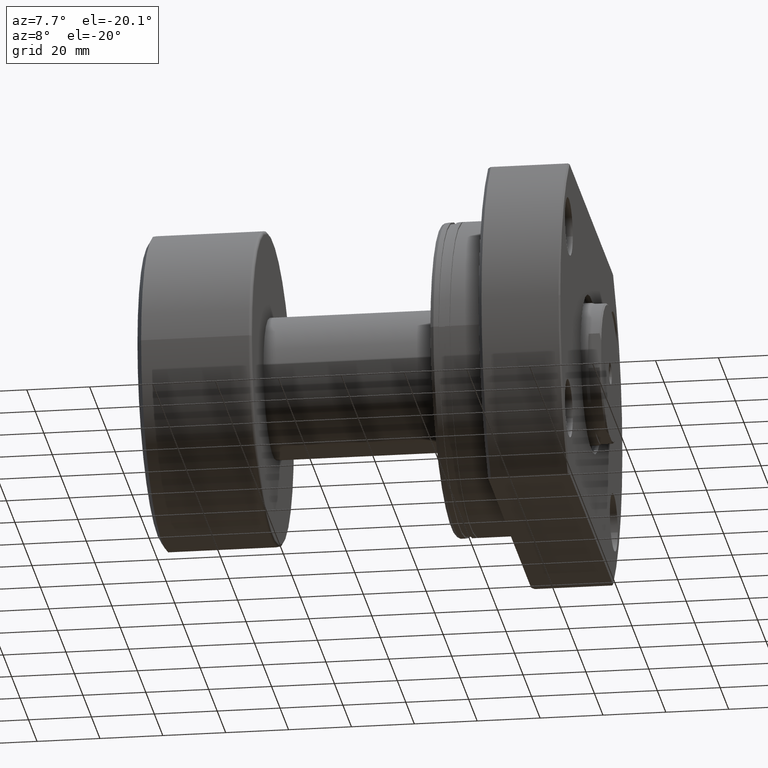
[diagram: clean part render]
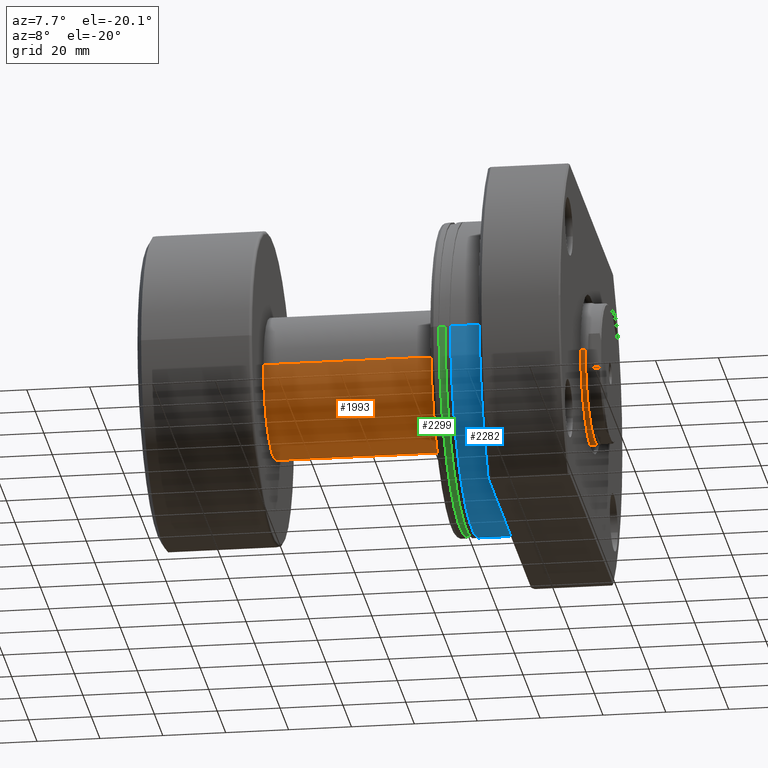
[diagram: same view with three faces highlighted in distinct colors, each labeled with its STEP entity id]
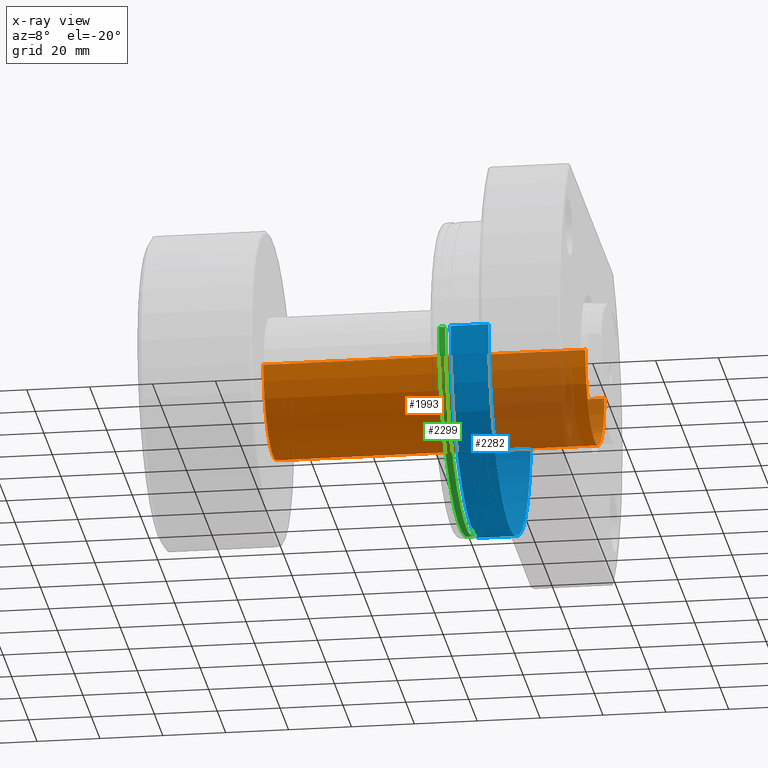
[diagram: x-ray of the same camera — body ghosted, the three highlighted faces saturated]
A machine part, auxiliary view with three faces highlighted in distinct colors.
The next image is the same camera in x-ray (body ghosted, the three faces saturated) — at least one of them is partly hidden behind the body in this view.
Their STEP definitions:

[orange] entity #1993 — the highlighted cylindrical surface (partial cylindrical patch) has radius 22.5 mm, axis along (-1, -0, -0).
#2 = DIRECTION ( 'NONE',  ( 0.000000000000000000, -1.000000000000000000, 0.000000000000000000 ) ) ;
#112 = CYLINDRICAL_SURFACE ( 'NONE', #2166, 22.50000000000009592 ) ;
#146 = ORIENTED_EDGE ( 'NONE', *, *, #1167, .T. ) ;
#185 = DIRECTION ( 'NONE',  ( -1.000000000000000000, -1.069542322069065801E-17, -0.000000000000000000 ) ) ;
#283 = VECTOR ( 'NONE', #185, 1000.000000000000000 ) ;
#361 = EDGE_CURVE ( 'NONE', #1715, #2779, #2980, .T. ) ;
#487 = VERTEX_POINT ( 'NONE', #2752 ) ;
#634 = DIRECTION ( 'NONE',  ( -1.000000000000000000, -1.069542322069065801E-17, -0.000000000000000000 ) ) ;
#974 = CIRCLE ( 'NONE', #2317, 22.50000000000000000 ) ;
#997 = CARTESIAN_POINT ( 'NONE',  ( 36.70000000000000284, -22.50000000000000000, 0.000000000000000000 ) ) ;
#1121 = CARTESIAN_POINT ( 'NONE',  ( 0.000000000000000000, 0.000000000000000000, 0.000000000000000000 ) ) ;
#1142 = CIRCLE ( 'NONE', #3206, 22.50000000000019185 ) ;
#1167 = EDGE_CURVE ( 'NONE', #487, #2038, #2818, .T. ) ;
#1190 = VECTOR ( 'NONE', #2361, 1000.000000000000000 ) ;
#1218 = CARTESIAN_POINT ( 'NONE',  ( 139.0667575123237896, 1.487377827523464785E-15, 0.000000000000000000 ) ) ;
#1322 = ORIENTED_EDGE ( 'NONE', *, *, #361, .F. ) ;
#1423 = CARTESIAN_POINT ( 'NONE',  ( -2.406470224655408490E-16, 22.50000000000009592, 2.755455298081556216E-15 ) ) ;
#1591 = CARTESIAN_POINT ( 'NONE',  ( 36.70000000000000284, 22.50000000000000000, 2.755455298081550694E-15 ) ) ;
#1715 = VERTEX_POINT ( 'NONE', #2775 ) ;
#1716 = DIRECTION ( 'NONE',  ( -1.000000000000000000, -1.069542322069065801E-17, -0.000000000000000000 ) ) ;
#1876 = EDGE_CURVE ( 'NONE', #2779, #2038, #974, .T. ) ;
#1993 = ADVANCED_FACE ( 'NONE', ( #2103 ), #112, .T. ) ;
#2038 = VERTEX_POINT ( 'NONE', #997 ) ;
#2043 = ORIENTED_EDGE ( 'NONE', *, *, #1876, .F. ) ;
#2076 = CARTESIAN_POINT ( 'NONE',  ( 2.406470224655408490E-16, -22.50000000000009592, 0.000000000000000000 ) ) ;
#2091 = EDGE_LOOP ( 'NONE', ( #1322, #2973, #146, #2043 ) ) ;
#2103 = FACE_OUTER_BOUND ( 'NONE', #2091, .T. ) ;
#2166 = AXIS2_PLACEMENT_3D ( 'NONE', #1121, #2605, #3103 ) ;
#2317 = AXIS2_PLACEMENT_3D ( 'NONE', #2792, #634, #3152 ) ;
#2361 = DIRECTION ( 'NONE',  ( -1.000000000000000000, -1.069542322069065801E-17, -0.000000000000000000 ) ) ;
#2605 = DIRECTION ( 'NONE',  ( -1.000000000000000000, -1.069542322069065801E-17, -0.000000000000000000 ) ) ;
#2752 = CARTESIAN_POINT ( 'NONE',  ( 139.0667575123237896, -22.50000000000019185, 0.000000000000000000 ) ) ;
#2775 = CARTESIAN_POINT ( 'NONE',  ( 139.0667575123237896, 22.50000000000018829, 2.755455298081568049E-15 ) ) ;
#2779 = VERTEX_POINT ( 'NONE', #1591 ) ;
#2792 = CARTESIAN_POINT ( 'NONE',  ( 36.70000000000000284, 3.925220321993471577E-16, 0.000000000000000000 ) ) ;
#2818 = LINE ( 'NONE', #2076, #1190 ) ;
#2973 = ORIENTED_EDGE ( 'NONE', *, *, #3121, .T. ) ;
#2980 = LINE ( 'NONE', #1423, #283 ) ;
#3103 = DIRECTION ( 'NONE',  ( 1.069542322069065955E-17, -1.000000000000000000, 0.000000000000000000 ) ) ;
#3121 = EDGE_CURVE ( 'NONE', #1715, #487, #1142, .T. ) ;
#3152 = DIRECTION ( 'NONE',  ( 0.000000000000000000, -1.000000000000000000, 0.000000000000000000 ) ) ;
#3206 = AXIS2_PLACEMENT_3D ( 'NONE', #1218, #1716, #2 ) ;

[blue] entity #2282 — the highlighted cylindrical surface (partial cylindrical patch) has radius 50 mm, axis along (1, 0, 0).
#51 = CARTESIAN_POINT ( 'NONE',  ( 44.50000000000000000, 2.449293598294705724E-15, 0.000000000000000000 ) ) ;
#58 = CARTESIAN_POINT ( 'NONE',  ( 6.499999999999790390, 3.577619862677545540E-16, 0.000000000000000000 ) ) ;
#71 = LINE ( 'NONE', #345, #94 ) ;
#94 = VECTOR ( 'NONE', #1800, 1000.000000000000000 ) ;
#253 = DIRECTION ( 'NONE',  ( 1.000000000000000000, 5.504030557965630938E-17, -0.000000000000000000 ) ) ;
#320 = VERTEX_POINT ( 'NONE', #2351 ) ;
#345 = CARTESIAN_POINT ( 'NONE',  ( 44.50000000000000000, -50.00000000000000000, 6.123233995736766085E-15 ) ) ;
#522 = CYLINDRICAL_SURFACE ( 'NONE', #1041, 50.00000000000000000 ) ;
#549 = DIRECTION ( 'NONE',  ( 0.000000000000000000, 1.000000000000000000, 0.000000000000000000 ) ) ;
#614 = CARTESIAN_POINT ( 'NONE',  ( 6.499999999999793054, -50.00000000000000000, 6.123233995736766085E-15 ) ) ;
#654 = AXIS2_PLACEMENT_3D ( 'NONE', #2979, #253, #3168 ) ;
#791 = DIRECTION ( 'NONE',  ( 1.000000000000000000, 5.504030557965630938E-17, -0.000000000000000000 ) ) ;
#905 = ORIENTED_EDGE ( 'NONE', *, *, #963, .T. ) ;
#963 = EDGE_CURVE ( 'NONE', #320, #1097, #2184, .T. ) ;
#1041 = AXIS2_PLACEMENT_3D ( 'NONE', #51, #791, #549 ) ;
#1097 = VERTEX_POINT ( 'NONE', #2457 ) ;
#1173 = ORIENTED_EDGE ( 'NONE', *, *, #1253, .F. ) ;
#1253 = EDGE_CURVE ( 'NONE', #2148, #1097, #3048, .T. ) ;
#1353 = ORIENTED_EDGE ( 'NONE', *, *, #1526, .T. ) ;
#1357 = VERTEX_POINT ( 'NONE', #614 ) ;
#1388 = AXIS2_PLACEMENT_3D ( 'NONE', #58, #1510, #1560 ) ;
#1510 = DIRECTION ( 'NONE',  ( 1.000000000000000000, 5.504030557965630938E-17, -0.000000000000000000 ) ) ;
#1526 = EDGE_CURVE ( 'NONE', #1357, #320, #2784, .T. ) ;
#1560 = DIRECTION ( 'NONE',  ( -5.204170427930421283E-17, 1.000000000000000000, 0.000000000000000000 ) ) ;
#1706 = CARTESIAN_POINT ( 'NONE',  ( 44.50000000000000000, 50.00000000000000000, 0.000000000000000000 ) ) ;
#1776 = EDGE_LOOP ( 'NONE', ( #2865, #1353, #905, #1173 ) ) ;
#1800 = DIRECTION ( 'NONE',  ( 1.000000000000000000, 5.504030557965630938E-17, -0.000000000000000000 ) ) ;
#1934 = CARTESIAN_POINT ( 'NONE',  ( 18.50000000000000355, -50.00000000000000000, 6.123233995736766085E-15 ) ) ;
#2148 = VERTEX_POINT ( 'NONE', #1934 ) ;
#2184 = LINE ( 'NONE', #1706, #2259 ) ;
#2259 = VECTOR ( 'NONE', #2697, 1000.000000000000000 ) ;
#2282 = ADVANCED_FACE ( 'NONE', ( #2518 ), #522, .T. ) ;
#2351 = CARTESIAN_POINT ( 'NONE',  ( 6.499999999999787725, 50.00000000000000000, 0.000000000000000000 ) ) ;
#2457 = CARTESIAN_POINT ( 'NONE',  ( 18.49999999999999645, 50.00000000000000000, 0.000000000000000000 ) ) ;
#2518 = FACE_OUTER_BOUND ( 'NONE', #1776, .T. ) ;
#2683 = EDGE_CURVE ( 'NONE', #1357, #2148, #71, .T. ) ;
#2697 = DIRECTION ( 'NONE',  ( 1.000000000000000000, 5.504030557965630938E-17, -0.000000000000000000 ) ) ;
#2784 = CIRCLE ( 'NONE', #1388, 50.00000000000000000 ) ;
#2865 = ORIENTED_EDGE ( 'NONE', *, *, #2683, .F. ) ;
#2979 = CARTESIAN_POINT ( 'NONE',  ( 18.50000000000000000, 1.018245653223641557E-15, 0.000000000000000000 ) ) ;
#3048 = CIRCLE ( 'NONE', #654, 50.00000000000000000 ) ;
#3168 = DIRECTION ( 'NONE',  ( -6.938893903907228378E-17, 1.000000000000000000, 0.000000000000000000 ) ) ;

[green] entity #2299 — the highlighted cylindrical surface (partial cylindrical patch) has radius 49.5 mm, axis along (1, 0, 0).
#19 = CARTESIAN_POINT ( 'NONE',  ( 2.699999999999795453, -49.50000000000000000, 6.062001655779398511E-15 ) ) ;
#52 = ORIENTED_EDGE ( 'NONE', *, *, #1956, .T. ) ;
#77 = DIRECTION ( 'NONE',  ( 0.000000000000000000, 1.000000000000000000, 0.000000000000000000 ) ) ;
#119 = DIRECTION ( 'NONE',  ( 1.000000000000000000, 5.504030557965630938E-17, -0.000000000000000000 ) ) ;
#149 = DIRECTION ( 'NONE',  ( -5.256737805990325406E-17, 1.000000000000000000, 0.000000000000000000 ) ) ;
#181 = EDGE_LOOP ( 'NONE', ( #2957, #2275, #52, #1987 ) ) ;
#192 = DIRECTION ( 'NONE',  ( 1.000000000000000000, 5.504030557965630938E-17, -0.000000000000000000 ) ) ;
#281 = CARTESIAN_POINT ( 'NONE',  ( 2.699999999999792788, 1.486088250650606153E-16, 0.000000000000000000 ) ) ;
#365 = CARTESIAN_POINT ( 'NONE',  ( 44.50000000000000000, -49.50000000000000000, 6.062001655779398511E-15 ) ) ;
#443 = VECTOR ( 'NONE', #119, 1000.000000000000000 ) ;
#463 = EDGE_CURVE ( 'NONE', #2610, #885, #1610, .T. ) ;
#560 = AXIS2_PLACEMENT_3D ( 'NONE', #281, #192, #1942 ) ;
#650 = CARTESIAN_POINT ( 'NONE',  ( 44.50000000000000000, 49.50000000000000000, 0.000000000000000000 ) ) ;
#885 = VERTEX_POINT ( 'NONE', #2629 ) ;
#985 = VERTEX_POINT ( 'NONE', #2199 ) ;
#1065 = FACE_OUTER_BOUND ( 'NONE', #181, .T. ) ;
#1267 = VERTEX_POINT ( 'NONE', #1682 ) ;
#1295 = AXIS2_PLACEMENT_3D ( 'NONE', #2066, #2301, #77 ) ;
#1323 = CYLINDRICAL_SURFACE ( 'NONE', #1295, 49.50000000000000000 ) ;
#1610 = LINE ( 'NONE', #365, #443 ) ;
#1651 = CIRCLE ( 'NONE', #2062, 49.49999999999999289 ) ;
#1682 = CARTESIAN_POINT ( 'NONE',  ( 2.699999999999790123, 49.50000000000000000, 0.000000000000000000 ) ) ;
#1684 = LINE ( 'NONE', #650, #2216 ) ;
#1923 = CARTESIAN_POINT ( 'NONE',  ( 4.699999999998552447, 2.586894362243048990E-16, 0.000000000000000000 ) ) ;
#1942 = DIRECTION ( 'NONE',  ( -5.256737805990324790E-17, 1.000000000000000000, 0.000000000000000000 ) ) ;
#1956 = EDGE_CURVE ( 'NONE', #1267, #985, #1684, .T. ) ;
#1987 = ORIENTED_EDGE ( 'NONE', *, *, #1991, .F. ) ;
#1991 = EDGE_CURVE ( 'NONE', #885, #985, #1651, .T. ) ;
#2062 = AXIS2_PLACEMENT_3D ( 'NONE', #1923, #2378, #149 ) ;
#2066 = CARTESIAN_POINT ( 'NONE',  ( 44.50000000000000000, 2.449293598294705724E-15, 0.000000000000000000 ) ) ;
#2199 = CARTESIAN_POINT ( 'NONE',  ( 4.699999999998549782, 49.49999999999999289, 0.000000000000000000 ) ) ;
#2216 = VECTOR ( 'NONE', #3127, 1000.000000000000000 ) ;
#2275 = ORIENTED_EDGE ( 'NONE', *, *, #2475, .T. ) ;
#2299 = ADVANCED_FACE ( 'NONE', ( #1065 ), #1323, .T. ) ;
#2301 = DIRECTION ( 'NONE',  ( 1.000000000000000000, 5.504030557965630938E-17, -0.000000000000000000 ) ) ;
#2378 = DIRECTION ( 'NONE',  ( 1.000000000000000000, 5.504030557965630938E-17, -0.000000000000000000 ) ) ;
#2475 = EDGE_CURVE ( 'NONE', #2610, #1267, #2741, .T. ) ;
#2610 = VERTEX_POINT ( 'NONE', #19 ) ;
#2629 = CARTESIAN_POINT ( 'NONE',  ( 4.699999999998555111, -49.49999999999999289, 6.062001655779397722E-15 ) ) ;
#2741 = CIRCLE ( 'NONE', #560, 49.50000000000000000 ) ;
#2957 = ORIENTED_EDGE ( 'NONE', *, *, #463, .F. ) ;
#3127 = DIRECTION ( 'NONE',  ( 1.000000000000000000, 5.504030557965630938E-17, -0.000000000000000000 ) ) ;